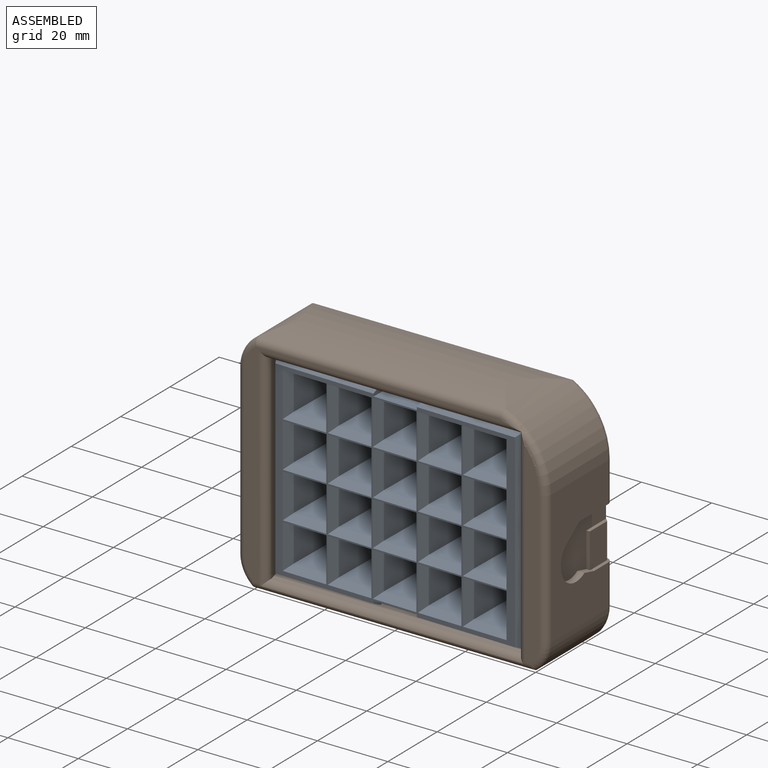
[diagram: assembled view]
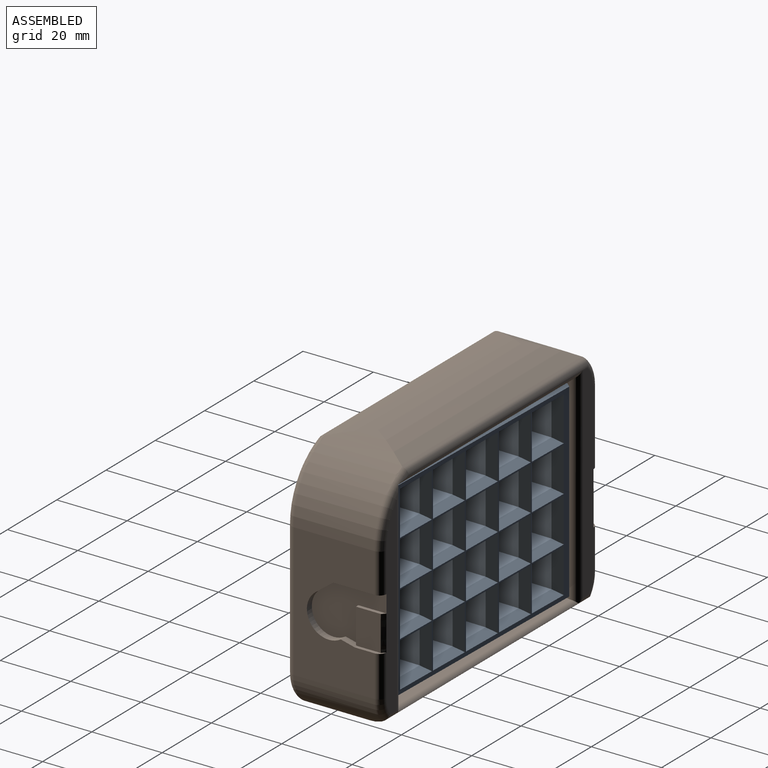
[diagram: assembled view, second angle]
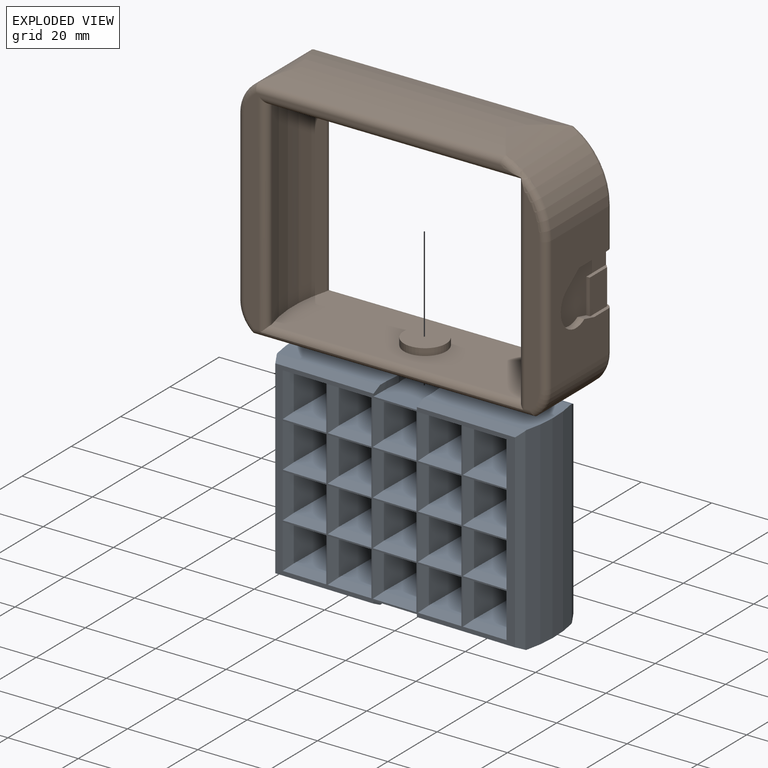
[diagram: exploded view]
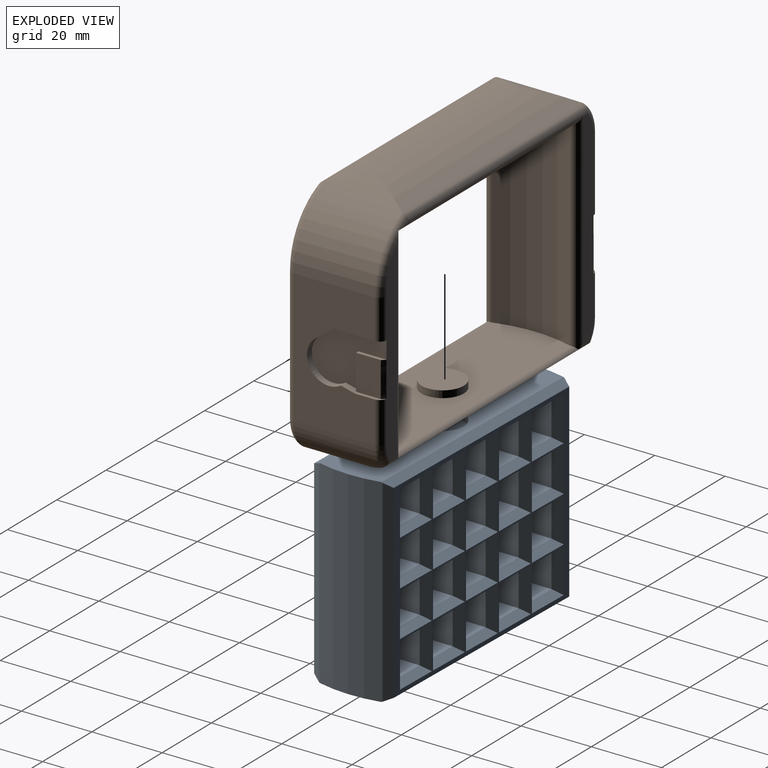
[diagram: exploded view, second angle]
ASSEMBLY  parts=2 mates=2
PART A: 268 faces, bbox 74x23x56.5 mm
  f0: plane 69.18x53.93mm, normal (0,1,0), area 555.3mm2, adj f1,f2,f172,f173,f174,f175,f176,f177
  f1: plane 29.66x2.6mm, normal (0,0.44,0.9), area 84.2mm2, adj f0,f5,f6,f254,f263
  f2: plane 29.66x2.6mm, normal (0,0.44,-0.9), area 84.2mm2, adj f0,f5,f7,f254,f257
  f3: cylinder r=37mm len=56.5mm, axis (0,0,-1), area 1053mm2, adj f6,f7,f168,f169,f171,f252,f253,f255
  f4: plane 69.18x53.93mm, normal (0,-1,0), area 573.2mm2, adj f88,f89,f90,f91,f92,f93,f94,f95
  f5: cylinder r=37mm len=56.5mm, axis (0,0,-1), area 1053mm2, adj f1,f2,f6,f7,f168,f170,f171,f254
  f6: plane 74x17.8mm, normal (0,0,1), area 1133.5mm2, adj f1,f3,f5,f171,f255,f262,f263,f264
  f7: plane 74x17.8mm, normal (0,0,-1), area 1133.5mm2, adj f2,f3,f5,f168,f252,f256,f257,f258
  f8: plane 17.8x10mm, normal (0,0,-1), area 178mm2, adj f9,f11,f165,f249
  f9: plane 17.8x10mm, normal (1,0,0), area 178mm2, adj f8,f10,f164,f248
  f10: plane 17.8x10mm, normal (0,0,1), area 178mm2, adj f9,f11,f166,f250
  f11: plane 17.8x10mm, normal (-1,0,0), area 178mm2, adj f8,f10,f167,f251
  f12: plane 17.8x10mm, normal (0,0,-1), area 178mm2, adj f13,f15,f89,f173
  f13: plane 17.8x10mm, normal (1,0,0), area 178mm2, adj f12,f14,f88,f172
  f14: plane 17.8x10mm, normal (0,0,1), area 178mm2, adj f13,f15,f90,f174
  f15: plane 17.8x10mm, normal (-1,0,0), area 178mm2, adj f12,f14,f91,f175
  f16: plane 17.8x10mm, normal (0,0,-1), area 178mm2, adj f17,f19,f93,f177
  f17: plane 17.8x10mm, normal (1,0,0), area 178mm2, adj f16,f18,f92,f176
  f18: plane 17.8x10mm, normal (0,0,1), area 178mm2, adj f17,f19,f94,f178
  f19: plane 17.8x10mm, normal (-1,0,0), area 178mm2, adj f16,f18,f95,f179
  f20: plane 17.8x10mm, normal (0,0,-1), area 178mm2, adj f21,f23,f97,f181
  f21: plane 17.8x10mm, normal (1,0,0), area 178mm2, adj f20,f22,f96,f180
  f22: plane 17.8x10mm, normal (0,0,1), area 178mm2, adj f21,f23,f98,f182
  f23: plane 17.8x10mm, normal (-1,0,0), area 178mm2, adj f20,f22,f99,f183
  f24: plane 17.8x10mm, normal (0,0,-1), area 178mm2, adj f25,f27,f145,f229
  f25: plane 17.8x10mm, normal (1,0,0), area 178mm2, adj f24,f26,f144,f228
  f26: plane 17.8x10mm, normal (0,0,1), area 178mm2, adj f25,f27,f146,f230
  f27: plane 17.8x10mm, normal (-1,0,0), area 178mm2, adj f24,f26,f147,f231
  f28: plane 17.8x10mm, normal (0,0,-1), area 178mm2, adj f29,f31,f141,f225
  f29: plane 17.8x10mm, normal (1,0,0), area 178mm2, adj f28,f30,f140,f224
  f30: plane 17.8x10mm, normal (0,0,1), area 178mm2, adj f29,f31,f142,f226
  f31: plane 17.8x10mm, normal (-1,0,0), area 178mm2, adj f28,f30,f143,f227
  f32: plane 17.8x10mm, normal (0,0,-1), area 178mm2, adj f33,f35,f137,f221
  f33: plane 17.8x10mm, normal (1,0,0), area 178mm2, adj f32,f34,f136,f220
  f34: plane 17.8x10mm, normal (0,0,1), area 178mm2, adj f33,f35,f138,f222
  f35: plane 17.8x10mm, normal (-1,0,0), area 178mm2, adj f32,f34,f139,f223
  f36: plane 17.8x10mm, normal (0,0,-1), area 178mm2, adj f37,f39,f133,f217
  f37: plane 17.8x10mm, normal (1,0,0), area 178mm2, adj f36,f38,f132,f216
  f38: plane 17.8x10mm, normal (0,0,1), area 178mm2, adj f37,f39,f134,f218
  f39: plane 17.8x10mm, normal (-1,0,0), area 178mm2, adj f36,f38,f135,f219
  f40: plane 17.8x10mm, normal (0,0,-1), area 178mm2, adj f41,f43,f161,f245
  f41: plane 17.8x10mm, normal (1,0,0), area 178mm2, adj f40,f42,f160,f244
  f42: plane 17.8x10mm, normal (0,0,1), area 178mm2, adj f41,f43,f162,f246
  f43: plane 17.8x10mm, normal (-1,0,0), area 178mm2, adj f40,f42,f163,f247
  f44: plane 17.8x10mm, normal (0,0,-1), area 178mm2, adj f45,f47,f157,f241
  f45: plane 17.8x10mm, normal (1,0,0), area 178mm2, adj f44,f46,f156,f240
  f46: plane 17.8x10mm, normal (0,0,1), area 178mm2, adj f45,f47,f158,f242
  f47: plane 17.8x10mm, normal (-1,0,0), area 178mm2, adj f44,f46,f159,f243
  f48: plane 17.8x10mm, normal (0,0,-1), area 178mm2, adj f49,f51,f153,f237
  f49: plane 17.8x10mm, normal (1,0,0), area 178mm2, adj f48,f50,f152,f236
  f50: plane 17.8x10mm, normal (0,0,1), area 178mm2, adj f49,f51,f154,f238
  f51: plane 17.8x10mm, normal (-1,0,0), area 178mm2, adj f48,f50,f155,f239
  f52: plane 17.8x10mm, normal (0,0,-1), area 178mm2, adj f53,f55,f149,f233
  f53: plane 17.8x10mm, normal (1,0,0), area 178mm2, adj f52,f54,f148,f232
  f54: plane 17.8x10mm, normal (0,0,1), area 178mm2, adj f53,f55,f150,f234
  f55: plane 17.8x10mm, normal (-1,0,0), area 178mm2, adj f52,f54,f151,f235
  f56: plane 17.8x10mm, normal (0,0,-1), area 178mm2, adj f57,f59,f113,f197
  f57: plane 17.8x10mm, normal (1,0,0), area 178mm2, adj f56,f58,f112,f196
  f58: plane 17.8x10mm, normal (0,0,1), area 178mm2, adj f57,f59,f114,f198
  f59: plane 17.8x10mm, normal (-1,0,0), area 178mm2, adj f56,f58,f115,f199
  f60: plane 17.8x10mm, normal (0,0,-1), area 178mm2, adj f61,f63,f109,f193
  f61: plane 17.8x10mm, normal (1,0,0), area 178mm2, adj f60,f62,f108,f192
  f62: plane 17.8x10mm, normal (0,0,1), area 178mm2, adj f61,f63,f110,f194
  f63: plane 17.8x10mm, normal (-1,0,0), area 178mm2, adj f60,f62,f111,f195
  f64: plane 17.8x10mm, normal (0,0,-1), area 178mm2, adj f65,f67,f105,f189
  f65: plane 17.8x10mm, normal (1,0,0), area 178mm2, adj f64,f66,f104,f188
  f66: plane 17.8x10mm, normal (0,0,1), area 178mm2, adj f65,f67,f106,f190
  f67: plane 17.8x10mm, normal (-1,0,0), area 178mm2, adj f64,f66,f107,f191
  f68: plane 17.8x10mm, normal (0,0,-1), area 178mm2, adj f69,f71,f101,f185
  f69: plane 17.8x10mm, normal (1,0,0), area 178mm2, adj f68,f70,f100,f184
  f70: plane 17.8x10mm, normal (0,0,1), area 178mm2, adj f69,f71,f102,f186
  f71: plane 17.8x10mm, normal (-1,0,0), area 178mm2, adj f68,f70,f103,f187
  f72: plane 17.8x10mm, normal (0,0,-1), area 178mm2, adj f73,f75,f129,f213
  f73: plane 17.8x10mm, normal (1,0,0), area 178mm2, adj f72,f74,f128,f212
  f74: plane 17.8x10mm, normal (0,0,1), area 178mm2, adj f73,f75,f130,f214
  f75: plane 17.8x10mm, normal (-1,0,0), area 178mm2, adj f72,f74,f131,f215
  f76: plane 17.8x10mm, normal (0,0,-1), area 178mm2, adj f77,f79,f125,f209
  f77: plane 17.8x10mm, normal (1,0,0), area 178mm2, adj f76,f78,f124,f208
  f78: plane 17.8x10mm, normal (0,0,1), area 178mm2, adj f77,f79,f126,f210
  f79: plane 17.8x10mm, normal (-1,0,0), area 178mm2, adj f76,f78,f127,f211
  f80: plane 17.8x10mm, normal (0,0,-1), area 178mm2, adj f81,f83,f121,f205
  f81: plane 17.8x10mm, normal (1,0,0), area 178mm2, adj f80,f82,f120,f204
  f82: plane 17.8x10mm, normal (0,0,1), area 178mm2, adj f81,f83,f122,f206
  f83: plane 17.8x10mm, normal (-1,0,0), area 178mm2, adj f80,f82,f123,f207
  f84: plane 17.8x10mm, normal (0,0,-1), area 178mm2, adj f85,f87,f117,f201
  f85: plane 17.8x10mm, normal (1,0,0), area 178mm2, adj f84,f86,f116,f200
  f86: plane 17.8x10mm, normal (0,0,1), area 178mm2, adj f85,f87,f118,f202
  f87: plane 17.8x10mm, normal (-1,0,0), area 178mm2, adj f84,f86,f119,f203
  f88: plane 12.57x2.6mm, normal (0.9,-0.44,0), area 32.7mm2, adj f4,f13,f89,f90
  f89: plane 12.57x2.6mm, normal (0,-0.44,-0.9), area 32.7mm2, adj f4,f12,f88,f91
  f90: plane 12.57x2.6mm, normal (0,-0.44,0.9), area 32.7mm2, adj f4,f14,f88,f91
  f91: plane 12.57x2.6mm, normal (-0.9,-0.44,0), area 32.7mm2, adj f4,f15,f89,f90
  f92: plane 12.57x2.6mm, normal (0.9,-0.44,0), area 32.7mm2, adj f4,f17,f93,f94
  f93: plane 12.57x2.6mm, normal (0,-0.44,-0.9), area 32.7mm2, adj f4,f16,f92,f95
  f94: plane 12.57x2.6mm, normal (0,-0.44,0.9), area 32.7mm2, adj f4,f18,f92,f95
  f95: plane 12.57x2.6mm, normal (-0.9,-0.44,0), area 32.7mm2, adj f4,f19,f93,f94
  f96: plane 12.57x2.6mm, normal (0.9,-0.44,0), area 32.7mm2, adj f4,f21,f97,f98
  f97: plane 12.57x2.6mm, normal (0,-0.44,-0.9), area 32.7mm2, adj f4,f20,f96,f99
  f98: plane 12.57x2.6mm, normal (0,-0.44,0.9), area 32.7mm2, adj f4,f22,f96,f99
  f99: plane 12.57x2.6mm, normal (-0.9,-0.44,0), area 32.7mm2, adj f4,f23,f97,f98
  f100: plane 12.57x2.6mm, normal (0.9,-0.44,0), area 32.7mm2, adj f4,f69,f101,f102
  f101: plane 12.57x2.6mm, normal (0,-0.44,-0.9), area 32.7mm2, adj f4,f68,f100,f103
  f102: plane 12.57x2.6mm, normal (0,-0.44,0.9), area 32.7mm2, adj f4,f70,f100,f103
  f103: plane 12.57x2.6mm, normal (-0.9,-0.44,0), area 32.7mm2, adj f4,f71,f101,f102
  f104: plane 12.57x2.6mm, normal (0.9,-0.44,0), area 32.7mm2, adj f4,f65,f105,f106
  f105: plane 12.57x2.6mm, normal (0,-0.44,-0.9), area 32.7mm2, adj f4,f64,f104,f107
  f106: plane 12.57x2.6mm, normal (0,-0.44,0.9), area 32.7mm2, adj f4,f66,f104,f107
  f107: plane 12.57x2.6mm, normal (-0.9,-0.44,0), area 32.7mm2, adj f4,f67,f105,f106
  f108: plane 12.57x2.6mm, normal (0.9,-0.44,0), area 32.7mm2, adj f4,f61,f109,f110
  f109: plane 12.57x2.6mm, normal (0,-0.44,-0.9), area 32.7mm2, adj f4,f60,f108,f111
  f110: plane 12.57x2.6mm, normal (0,-0.44,0.9), area 32.7mm2, adj f4,f62,f108,f111
  f111: plane 12.57x2.6mm, normal (-0.9,-0.44,0), area 32.7mm2, adj f4,f63,f109,f110
  f112: plane 12.57x2.6mm, normal (0.9,-0.44,0), area 32.7mm2, adj f4,f57,f113,f114
  f113: plane 12.57x2.6mm, normal (0,-0.44,-0.9), area 32.7mm2, adj f4,f56,f112,f115
  f114: plane 12.57x2.6mm, normal (0,-0.44,0.9), area 32.7mm2, adj f4,f58,f112,f115
  f115: plane 12.57x2.6mm, normal (-0.9,-0.44,0), area 32.7mm2, adj f4,f59,f113,f114
  f116: plane 12.57x2.6mm, normal (0.9,-0.44,0), area 32.7mm2, adj f4,f85,f117,f118
  f117: plane 12.57x2.6mm, normal (0,-0.44,-0.9), area 32.7mm2, adj f4,f84,f116,f119
  f118: plane 12.57x2.6mm, normal (0,-0.44,0.9), area 32.7mm2, adj f4,f86,f116,f119
  f119: plane 12.57x2.6mm, normal (-0.9,-0.44,0), area 32.7mm2, adj f4,f87,f117,f118
  f120: plane 12.57x2.6mm, normal (0.9,-0.44,0), area 32.7mm2, adj f4,f81,f121,f122
  f121: plane 12.57x2.6mm, normal (0,-0.44,-0.9), area 32.7mm2, adj f4,f80,f120,f123
  f122: plane 12.57x2.6mm, normal (0,-0.44,0.9), area 32.7mm2, adj f4,f82,f120,f123
  f123: plane 12.57x2.6mm, normal (-0.9,-0.44,0), area 32.7mm2, adj f4,f83,f121,f122
  f124: plane 12.57x2.6mm, normal (0.9,-0.44,0), area 32.7mm2, adj f4,f77,f125,f126
  f125: plane 12.57x2.6mm, normal (0,-0.44,-0.9), area 32.7mm2, adj f4,f76,f124,f127
  f126: plane 12.57x2.6mm, normal (0,-0.44,0.9), area 32.7mm2, adj f4,f78,f124,f127
  f127: plane 12.57x2.6mm, normal (-0.9,-0.44,0), area 32.7mm2, adj f4,f79,f125,f126
  f128: plane 12.57x2.6mm, normal (0.9,-0.44,0), area 32.7mm2, adj f4,f73,f129,f130
  f129: plane 12.57x2.6mm, normal (0,-0.44,-0.9), area 32.7mm2, adj f4,f72,f128,f131
  f130: plane 12.57x2.6mm, normal (0,-0.44,0.9), area 32.7mm2, adj f4,f74,f128,f131
  f131: plane 12.57x2.6mm, normal (-0.9,-0.44,0), area 32.7mm2, adj f4,f75,f129,f130
  f132: plane 12.57x2.6mm, normal (0.9,-0.44,0), area 32.7mm2, adj f4,f37,f133,f134
  f133: plane 12.57x2.6mm, normal (0,-0.44,-0.9), area 32.7mm2, adj f4,f36,f132,f135
  f134: plane 12.57x2.6mm, normal (0,-0.44,0.9), area 32.7mm2, adj f4,f38,f132,f135
  f135: plane 12.57x2.6mm, normal (-0.9,-0.44,0), area 32.7mm2, adj f4,f39,f133,f134
  f136: plane 12.57x2.6mm, normal (0.9,-0.44,0), area 32.7mm2, adj f4,f33,f137,f138
  f137: plane 12.57x2.6mm, normal (0,-0.44,-0.9), area 32.7mm2, adj f4,f32,f136,f139
  f138: plane 12.57x2.6mm, normal (0,-0.44,0.9), area 32.7mm2, adj f4,f34,f136,f139
  f139: plane 12.57x2.6mm, normal (-0.9,-0.44,0), area 32.7mm2, adj f4,f35,f137,f138
  f140: plane 12.57x2.6mm, normal (0.9,-0.44,0), area 32.7mm2, adj f4,f29,f141,f142
  f141: plane 12.57x2.6mm, normal (0,-0.44,-0.9), area 32.7mm2, adj f4,f28,f140,f143
  f142: plane 12.57x2.6mm, normal (0,-0.44,0.9), area 32.7mm2, adj f4,f30,f140,f143
  f143: plane 12.57x2.6mm, normal (-0.9,-0.44,0), area 32.7mm2, adj f4,f31,f141,f142
  f144: plane 12.57x2.6mm, normal (0.9,-0.44,0), area 32.7mm2, adj f4,f25,f145,f146
  f145: plane 12.57x2.6mm, normal (0,-0.44,-0.9), area 32.7mm2, adj f4,f24,f144,f147
  f146: plane 12.57x2.6mm, normal (0,-0.44,0.9), area 32.7mm2, adj f4,f26,f144,f147
  f147: plane 12.57x2.6mm, normal (-0.9,-0.44,0), area 32.7mm2, adj f4,f27,f145,f146
  f148: plane 12.57x2.6mm, normal (0.9,-0.44,0), area 32.7mm2, adj f4,f53,f149,f150
  f149: plane 12.57x2.6mm, normal (0,-0.44,-0.9), area 32.7mm2, adj f4,f52,f148,f151
  f150: plane 12.57x2.6mm, normal (0,-0.44,0.9), area 32.7mm2, adj f4,f54,f148,f151
  f151: plane 12.57x2.6mm, normal (-0.9,-0.44,0), area 32.7mm2, adj f4,f55,f149,f150
  f152: plane 12.57x2.6mm, normal (0.9,-0.44,0), area 32.7mm2, adj f4,f49,f153,f154
  f153: plane 12.57x2.6mm, normal (0,-0.44,-0.9), area 32.7mm2, adj f4,f48,f152,f155
  f154: plane 12.57x2.6mm, normal (0,-0.44,0.9), area 32.7mm2, adj f4,f50,f152,f155
  f155: plane 12.57x2.6mm, normal (-0.9,-0.44,0), area 32.7mm2, adj f4,f51,f153,f154
  f156: plane 12.57x2.6mm, normal (0.9,-0.44,0), area 32.7mm2, adj f4,f45,f157,f158
  f157: plane 12.57x2.6mm, normal (0,-0.44,-0.9), area 32.7mm2, adj f4,f44,f156,f159
  f158: plane 12.57x2.6mm, normal (0,-0.44,0.9), area 32.7mm2, adj f4,f46,f156,f159
  f159: plane 12.57x2.6mm, normal (-0.9,-0.44,0), area 32.7mm2, adj f4,f47,f157,f158
  f160: plane 12.57x2.6mm, normal (0.9,-0.44,0), area 32.7mm2, adj f4,f41,f161,f162
  f161: plane 12.57x2.6mm, normal (0,-0.44,-0.9), area 32.7mm2, adj f4,f40,f160,f163
  f162: plane 12.57x2.6mm, normal (0,-0.44,0.9), area 32.7mm2, adj f4,f42,f160,f163
  f163: plane 12.57x2.6mm, normal (-0.9,-0.44,0), area 32.7mm2, adj f4,f43,f161,f162
  f164: plane 12.57x2.6mm, normal (0.9,-0.44,0), area 32.7mm2, adj f4,f9,f165,f166
  f165: plane 12.57x2.6mm, normal (0,-0.44,-0.9), area 32.7mm2, adj f4,f8,f164,f167
  f166: plane 12.57x2.6mm, normal (0,-0.44,0.9), area 32.7mm2, adj f4,f10,f164,f167
  f167: plane 12.57x2.6mm, normal (-0.9,-0.44,0), area 32.7mm2, adj f4,f11,f165,f166
  f168: plane 71.83x2.6mm, normal (0,-0.44,-0.9), area 204.5mm2, adj f3,f4,f5,f7,f169,f170
  f169: plane 56.18x2.28mm, normal (-0.88,-0.48,0), area 142.9mm2, adj f3,f4,f168,f171
  f170: plane 56.18x2.28mm, normal (0.88,-0.48,0), area 142.9mm2, adj f4,f5,f168,f171
  f171: plane 71.83x2.6mm, normal (0,-0.44,0.9), area 204.5mm2, adj f3,f4,f5,f6,f169,f170
  f172: plane 12.57x2.6mm, normal (0.9,0.44,0), area 32.7mm2, adj f0,f13,f173,f174
  f173: plane 12.57x2.6mm, normal (0,0.44,-0.9), area 32.7mm2, adj f0,f12,f172,f175
  f174: plane 12.57x2.6mm, normal (0,0.44,0.9), area 32.7mm2, adj f0,f14,f172,f175
  f175: plane 12.57x2.6mm, normal (-0.9,0.44,0), area 32.7mm2, adj f0,f15,f173,f174
  f176: plane 12.57x2.6mm, normal (0.9,0.44,0), area 32.7mm2, adj f0,f17,f177,f178
  f177: plane 12.57x2.6mm, normal (0,0.44,-0.9), area 32.7mm2, adj f0,f16,f176,f179
  f178: plane 12.57x2.6mm, normal (0,0.44,0.9), area 32.7mm2, adj f0,f18,f176,f179
  f179: plane 12.57x2.6mm, normal (-0.9,0.44,0), area 32.7mm2, adj f0,f19,f177,f178
  f180: plane 12.57x2.6mm, normal (0.9,0.44,0), area 32.7mm2, adj f0,f21,f181,f182
  f181: plane 12.57x2.6mm, normal (0,0.44,-0.9), area 32.7mm2, adj f0,f20,f180,f183
  f182: plane 12.57x2.6mm, normal (0,0.44,0.9), area 32.7mm2, adj f0,f22,f180,f183
  f183: plane 12.57x2.6mm, normal (-0.9,0.44,0), area 32.7mm2, adj f0,f23,f181,f182
  f184: plane 12.57x2.6mm, normal (0.9,0.44,0), area 32.7mm2, adj f0,f69,f185,f186
  f185: plane 12.57x2.6mm, normal (0,0.44,-0.9), area 32.7mm2, adj f0,f68,f184,f187
  f186: plane 12.57x2.6mm, normal (0,0.44,0.9), area 32.7mm2, adj f0,f70,f184,f187
  f187: plane 12.57x2.6mm, normal (-0.9,0.44,0), area 32.7mm2, adj f0,f71,f185,f186
  f188: plane 12.57x2.6mm, normal (0.9,0.44,0), area 32.7mm2, adj f0,f65,f189,f190
  f189: plane 12.57x2.6mm, normal (0,0.44,-0.9), area 32.7mm2, adj f0,f64,f188,f191
  f190: plane 12.57x2.6mm, normal (0,0.44,0.9), area 32.7mm2, adj f0,f66,f188,f191
  f191: plane 12.57x2.6mm, normal (-0.9,0.44,0), area 32.7mm2, adj f0,f67,f189,f190
  f192: plane 12.57x2.6mm, normal (0.9,0.44,0), area 32.7mm2, adj f0,f61,f193,f194
  f193: plane 12.57x2.6mm, normal (0,0.44,-0.9), area 32.7mm2, adj f0,f60,f192,f195
  f194: plane 12.57x2.6mm, normal (0,0.44,0.9), area 32.7mm2, adj f0,f62,f192,f195
  f195: plane 12.57x2.6mm, normal (-0.9,0.44,0), area 32.7mm2, adj f0,f63,f193,f194
  f196: plane 12.57x2.6mm, normal (0.9,0.44,0), area 32.7mm2, adj f0,f57,f197,f198
  f197: plane 12.57x2.6mm, normal (0,0.44,-0.9), area 32.7mm2, adj f0,f56,f196,f199
  f198: plane 12.57x2.6mm, normal (0,0.44,0.9), area 32.7mm2, adj f0,f58,f196,f199
  f199: plane 12.57x2.6mm, normal (-0.9,0.44,0), area 32.7mm2, adj f0,f59,f197,f198
  f200: plane 12.57x2.6mm, normal (0.9,0.44,0), area 32.7mm2, adj f0,f85,f201,f202
  f201: plane 12.57x2.6mm, normal (0,0.44,-0.9), area 32.7mm2, adj f0,f84,f200,f203
  f202: plane 12.57x2.6mm, normal (0,0.44,0.9), area 32.7mm2, adj f0,f86,f200,f203
  f203: plane 12.57x2.6mm, normal (-0.9,0.44,0), area 32.7mm2, adj f0,f87,f201,f202
  f204: plane 12.57x2.6mm, normal (0.9,0.44,0), area 32.7mm2, adj f0,f81,f205,f206
  f205: plane 12.57x2.6mm, normal (0,0.44,-0.9), area 32.7mm2, adj f0,f80,f204,f207
  f206: plane 12.57x2.6mm, normal (0,0.44,0.9), area 32.7mm2, adj f0,f82,f204,f207
  f207: plane 12.57x2.6mm, normal (-0.9,0.44,0), area 32.7mm2, adj f0,f83,f205,f206
  f208: plane 12.57x2.6mm, normal (0.9,0.44,0), area 32.7mm2, adj f0,f77,f209,f210
  f209: plane 12.57x2.6mm, normal (0,0.44,-0.9), area 32.7mm2, adj f0,f76,f208,f211
  f210: plane 12.57x2.6mm, normal (0,0.44,0.9), area 32.7mm2, adj f0,f78,f208,f211
  f211: plane 12.57x2.6mm, normal (-0.9,0.44,0), area 32.7mm2, adj f0,f79,f209,f210
  f212: plane 12.57x2.6mm, normal (0.9,0.44,0), area 32.7mm2, adj f0,f73,f213,f214
  f213: plane 12.57x2.6mm, normal (0,0.44,-0.9), area 32.7mm2, adj f0,f72,f212,f215
  f214: plane 12.57x2.6mm, normal (0,0.44,0.9), area 32.7mm2, adj f0,f74,f212,f215
  f215: plane 12.57x2.6mm, normal (-0.9,0.44,0), area 32.7mm2, adj f0,f75,f213,f214
  f216: plane 12.57x2.6mm, normal (0.9,0.44,0), area 32.7mm2, adj f0,f37,f217,f218
  f217: plane 12.57x2.6mm, normal (0,0.44,-0.9), area 32.7mm2, adj f0,f36,f216,f219
  f218: plane 12.57x2.6mm, normal (0,0.44,0.9), area 32.7mm2, adj f0,f38,f216,f219
  f219: plane 12.57x2.6mm, normal (-0.9,0.44,0), area 32.7mm2, adj f0,f39,f217,f218
  f220: plane 12.57x2.6mm, normal (0.9,0.44,0), area 32.7mm2, adj f0,f33,f221,f222
  f221: plane 12.57x2.6mm, normal (0,0.44,-0.9), area 32.7mm2, adj f0,f32,f220,f223
  f222: plane 12.57x2.6mm, normal (0,0.44,0.9), area 32.7mm2, adj f0,f34,f220,f223
  f223: plane 12.57x2.6mm, normal (-0.9,0.44,0), area 32.7mm2, adj f0,f35,f221,f222
  f224: plane 12.57x2.6mm, normal (0.9,0.44,0), area 32.7mm2, adj f0,f29,f225,f226
  f225: plane 12.57x2.6mm, normal (0,0.44,-0.9), area 32.7mm2, adj f0,f28,f224,f227
  f226: plane 12.57x2.6mm, normal (0,0.44,0.9), area 32.7mm2, adj f0,f30,f224,f227
  f227: plane 12.57x2.6mm, normal (-0.9,0.44,0), area 32.7mm2, adj f0,f31,f225,f226
  f228: plane 12.57x2.6mm, normal (0.9,0.44,0), area 32.7mm2, adj f0,f25,f229,f230
  f229: plane 12.57x2.6mm, normal (0,0.44,-0.9), area 32.7mm2, adj f0,f24,f228,f231
  f230: plane 12.57x2.6mm, normal (0,0.44,0.9), area 32.7mm2, adj f0,f26,f228,f231
  f231: plane 12.57x2.6mm, normal (-0.9,0.44,0), area 32.7mm2, adj f0,f27,f229,f230
  f232: plane 12.57x2.6mm, normal (0.9,0.44,0), area 32.7mm2, adj f0,f53,f233,f234
  f233: plane 12.57x2.6mm, normal (0,0.44,-0.9), area 32.7mm2, adj f0,f52,f232,f235
  f234: plane 12.57x2.6mm, normal (0,0.44,0.9), area 32.7mm2, adj f0,f54,f232,f235
  f235: plane 12.57x2.6mm, normal (-0.9,0.44,0), area 32.7mm2, adj f0,f55,f233,f234
  f236: plane 12.57x2.6mm, normal (0.9,0.44,0), area 32.7mm2, adj f0,f49,f237,f238
  f237: plane 12.57x2.6mm, normal (0,0.44,-0.9), area 32.7mm2, adj f0,f48,f236,f239
  f238: plane 12.57x2.6mm, normal (0,0.44,0.9), area 32.7mm2, adj f0,f50,f236,f239
  f239: plane 12.57x2.6mm, normal (-0.9,0.44,0), area 32.7mm2, adj f0,f51,f237,f238
  f240: plane 12.57x2.6mm, normal (0.9,0.44,0), area 32.7mm2, adj f0,f45,f241,f242
  f241: plane 12.57x2.6mm, normal (0,0.44,-0.9), area 32.7mm2, adj f0,f44,f240,f243
  f242: plane 12.57x2.6mm, normal (0,0.44,0.9), area 32.7mm2, adj f0,f46,f240,f243
  f243: plane 12.57x2.6mm, normal (-0.9,0.44,0), area 32.7mm2, adj f0,f47,f241,f242
  f244: plane 12.57x2.6mm, normal (0.9,0.44,0), area 32.7mm2, adj f0,f41,f245,f246
  f245: plane 12.57x2.6mm, normal (0,0.44,-0.9), area 32.7mm2, adj f0,f40,f244,f247
  f246: plane 12.57x2.6mm, normal (0,0.44,0.9), area 32.7mm2, adj f0,f42,f244,f247
  f247: plane 12.57x2.6mm, normal (-0.9,0.44,0), area 32.7mm2, adj f0,f43,f245,f246
  f248: plane 12.57x2.6mm, normal (0.9,0.44,0), area 32.7mm2, adj f0,f9,f249,f250
  f249: plane 12.57x2.6mm, normal (0,0.44,-0.9), area 32.7mm2, adj f0,f8,f248,f251
  f250: plane 12.57x2.6mm, normal (0,0.44,0.9), area 32.7mm2, adj f0,f10,f248,f251
  f251: plane 12.57x2.6mm, normal (-0.9,0.44,0), area 32.7mm2, adj f0,f11,f249,f250
  f252: plane 29.66x2.6mm, normal (0,0.44,-0.9), area 84.2mm2, adj f0,f3,f7,f253,f258
  f253: plane 56.18x2.28mm, normal (-0.88,0.48,0), area 142.9mm2, adj f0,f3,f252,f255
  f254: plane 56.18x2.28mm, normal (0.88,0.48,0), area 142.9mm2, adj f0,f1,f2,f5
  f255: plane 29.66x2.6mm, normal (0,0.44,0.9), area 84.2mm2, adj f0,f3,f6,f253,f264
  f256: plane 3.84x2mm, normal (-1,0.08,0), area 7.7mm2, adj f7,f257,f260,f261
  f257: plane 5.75x2mm, normal (-1,0,0), area 9.8mm2, adj f0,f2,f7,f256,f261
  f258: plane 5.75x2mm, normal (1,0,0), area 9.8mm2, adj f0,f7,f252,f259,f261
  f259: plane 3.84x2mm, normal (1,0.08,0), area 7.7mm2, adj f7,f258,f260,f261
  f260: cylinder r=6.25mm len=12.5mm, axis (0,0,-1), area 47mm2, adj f7,f256,f259,f261
  f261: plane 17.75x12.5mm, normal (0,0,-1), area 203.6mm2, adj f0,f256,f257,f258,f259,f260
  f262: plane 3.84x2mm, normal (-1,0.08,0), area 7.7mm2, adj f6,f263,f266,f267
  f263: plane 5.75x2mm, normal (-1,0,0), area 9.8mm2, adj f0,f1,f6,f262,f267
  f264: plane 5.75x2mm, normal (1,0,0), area 9.8mm2, adj f0,f6,f255,f265,f267
  f265: plane 3.84x2mm, normal (1,0.08,0), area 7.7mm2, adj f6,f264,f266,f267
  f266: cylinder r=6.25mm len=12.5mm, axis (0,0,-1), area 47mm2, adj f6,f262,f265,f267
  f267: plane 17.75x12.5mm, normal (0,0,1), area 203.6mm2, adj f0,f262,f263,f264,f265,f266
PART B: 66 faces, bbox 90.7x27.3x68.5 mm
  f0: plane 9.9x1mm, normal (0,-1,0), area 9.9mm2, adj f3,f55,f57,f59
  f1: plane 38x23mm, normal (1,0,0), area 619.2mm2, adj f2,f10,f13,f25,f37,f53,f54,f55
  f2: cylinder r=2mm len=11.75mm, axis (0,0,1), area 36.9mm2, adj f1,f9,f20,f58
  f3: plane 8.25x1.25mm, normal (0,0,1), area 7.6mm2, adj f0,f57,f59,f60
  f4: plane 48x23mm, normal (-1,0,0), area 849.2mm2, adj f5,f11,f12,f26,f40,f45,f46,f47
  f5: cylinder r=2mm len=11.75mm, axis (0,0,-1), area 36.9mm2, adj f4,f7,f21,f51
  f6: plane 74.25x60.66mm, normal (0,-1,0), area 289.9mm2, adj f33,f35,f36,f39,f40,f41,f42,f43
  f7: plane 58.22x4.2mm, normal (0,1,0), area 238.2mm2, adj f5,f21,f22,f26,f27,f30,f31,f50
  f8: plane 55.58x4.22mm, normal (0,-1,0), area 214.3mm2, adj f32,f33,f37,f38,f41
  f9: plane 54.07x4.2mm, normal (0,1,0), area 209.7mm2, adj f2,f20,f22,f24,f25,f29,f57,f60
  f10: cylinder r=20mm len=23mm, axis (0,1,0), area 625.6mm2, adj f1,f19,f29,f41
  f11: cylinder r=10mm len=23mm, axis (0,1,0), area 292.2mm2, adj f4,f19,f30,f42
  f12: cylinder r=10mm len=23mm, axis (0,1,0), area 276.9mm2, adj f4,f18,f21,f36
  f13: cylinder r=10mm len=23mm, axis (0,1,0), area 276.9mm2, adj f1,f18,f20,f32
  f14: cylinder r=37.5mm len=57mm, axis (0,0,-1), area 1262.9mm2, adj f16,f17,f27,f35
  f15: cylinder r=37.5mm len=57mm, axis (0,0,-1), area 1262.9mm2, adj f16,f17,f24,f38
  f16: plane 75x23mm, normal (0,0,-1), area 1584.5mm2, adj f14,f15,f24,f27,f28,f35,f38,f39
  f17: plane 75x23mm, normal (0,0,1), area 1584.5mm2, adj f14,f15,f23,f24,f27,f34,f35,f38
  f18: cylinder r=28mm len=82.92mm, axis (-1,0,0), area 1933.6mm2, adj f12,f13,f20,f21,f22,f32,f33,f36
  f19: cylinder r=40mm len=73.6mm, axis (-1,0,0), area 1606.9mm2, adj f10,f11,f29,f30,f31,f41,f42,f43
  f20: torus R=8mm, axis (0,-1,0), area 19.7mm2, adj f2,f9,f13,f18,f22
  f21: torus R=8mm, axis (0,-1,0), area 19.7mm2, adj f5,f7,f12,f18,f22
  f22: cylinder r=2mm len=82.92mm, axis (-1,0,0), area 72.3mm2, adj f7,f9,f18,f20,f21,f23,f24,f27
  f23: cylinder r=2mm len=73.12mm, axis (1,0,0), area 130.4mm2, adj f17,f22,f24,f27
  f24: cylinder r=2mm len=58.46mm, axis (0,0,-1), area 212.9mm2, adj f9,f15,f16,f17,f22,f23,f28,f29
  f25: cylinder r=2mm len=11.25mm, axis (0,0,1), area 35.3mm2, adj f1,f9,f29,f56
  f26: cylinder r=2mm len=21.25mm, axis (0,0,-1), area 66.8mm2, adj f4,f7,f30,f45
  f27: cylinder r=2mm len=59.61mm, axis (0,0,-1), area 215.5mm2, adj f7,f14,f16,f17,f22,f23,f28,f31
  f28: cylinder r=2mm len=74.16mm, axis (-1,0,0), area 216.4mm2, adj f16,f24,f27,f29,f31
  f29: torus R=18mm, axis (0,-1,0), area 60.2mm2, adj f9,f10,f19,f24,f25,f28,f31
  f30: torus R=8mm, axis (0,-1,0), area 24.7mm2, adj f7,f11,f19,f26,f31
  f31: cylinder r=2mm len=73.6mm, axis (-1,0,0), area 168mm2, adj f7,f19,f27,f28,f29,f30
  f32: torus R=8mm, axis (0,-1,0), area 26.2mm2, adj f8,f13,f18,f33,f37
  f33: cylinder r=2mm len=79.9mm, axis (-1,0,0), area 148.4mm2, adj f6,f8,f18,f32,f34,f35,f36,f38
  f34: cylinder r=2mm len=74.55mm, axis (-1,0,0), area 192.6mm2, adj f17,f33,f35,f38
  f35: cylinder r=2mm len=60.5mm, axis (0,0,-1), area 217.2mm2, adj f6,f14,f16,f17,f33,f34,f39
  f36: torus R=8mm, axis (0,-1,0), area 26.2mm2, adj f6,f12,f18,f33,f40
  f37: cylinder r=2mm len=38mm, axis (0,0,-1), area 119.4mm2, adj f1,f8,f32,f41
  f38: cylinder r=2mm len=59.21mm, axis (0,0,-1), area 214.3mm2, adj f8,f15,f16,f17,f33,f34,f39,f41
  f39: cylinder r=2mm len=74.26mm, axis (1,0,0), area 226.6mm2, adj f6,f16,f35,f38,f41
  f40: cylinder r=2mm len=48mm, axis (0,0,1), area 150.8mm2, adj f4,f6,f36,f42
  f41: torus R=18mm, axis (0,-1,0), area 67.2mm2, adj f6,f8,f10,f19,f37,f38,f39,f43
  f42: torus R=8mm, axis (0,-1,0), area 29.8mm2, adj f6,f11,f19,f40,f43
  f43: cylinder r=2mm len=70.16mm, axis (-1,0,0), area 181.9mm2, adj f6,f19,f41,f42
  f44: plane 8.25x1.25mm, normal (0,0,1), area 7.6mm2, adj f49,f50,f52,f61
  f45: plane 13.75x2mm, normal (0,0,-1), area 26.6mm2, adj f4,f26,f46,f50
  f46: plane 5x3.75mm, normal (0,0.6,-0.8), area 12.5mm2, adj f4,f45,f47,f50
  f47: cylinder r=6.25mm len=11.25mm, axis (-1,0,0), area 38.4mm2, adj f4,f46,f48,f50
  f48: plane 4x2mm, normal (0,0.24,0.97), area 7.8mm2, adj f4,f47,f49,f50,f51,f52
  f49: plane 9.9x1mm, normal (0,-1,0), area 9.9mm2, adj f44,f48,f50,f52
  f50: plane 21.25x15mm, normal (-1,0,0), area 204.8mm2, adj f7,f44,f45,f46,f47,f48,f49
  f51: plane 7.86x2.25mm, normal (0,0,1), area 7.2mm2, adj f4,f5,f48,f52,f61
  f52: plane 10x7mm, normal (-1,0,0), area 70mm2, adj f44,f48,f49,f51,f61
  f53: plane 5x3.75mm, normal (0,0.6,-0.8), area 12.5mm2, adj f1,f54,f56,f57
  f54: cylinder r=6.25mm len=11.25mm, axis (-1,0,0), area 38.4mm2, adj f1,f53,f55,f57
  f55: plane 4x2mm, normal (0,0.24,0.97), area 7.8mm2, adj f0,f1,f54,f57,f58,f59
  f56: plane 13.75x2mm, normal (0,0,-1), area 26.6mm2, adj f1,f25,f53,f57
  f57: plane 21.25x15mm, normal (1,0,0), area 204.8mm2, adj f0,f3,f9,f53,f54,f55,f56
  f58: plane 7.86x2.25mm, normal (0,0,1), area 7.2mm2, adj f1,f2,f55,f59,f60
  f59: plane 10x7mm, normal (1,0,0), area 70mm2, adj f0,f3,f55,f58,f60
  f60: bspline ~11x1mm, area 14.4mm2, adj f3,f9,f58,f59
  f61: bspline ~11x1mm, area 14.4mm2, adj f7,f44,f51,f52
  f62: cylinder r=6mm len=12mm, axis (0,0,-1), area 75.4mm2, adj f17,f63
  f63: plane 12x12mm, normal (0,0,1), area 113.1mm2, adj f62
  f64: cylinder r=6mm len=12mm, axis (0,0,-1), area 75.4mm2, adj f16,f65
  f65: plane 12x12mm, normal (0,0,-1), area 113.1mm2, adj f64
PLACE A rot(axis=(0,0,1),178.8deg) t=(-55.98,-11.66,5.25)mm
PLACE B at identity fixed
MATE parallel A.f6 <-> B.f16  axis (0,0,1) through (44,-13.46,61.75)mm
MATE cylindrical B.f14 <-> A.f6  axis (0,0,-1) through (44,-13.46,60)mm
